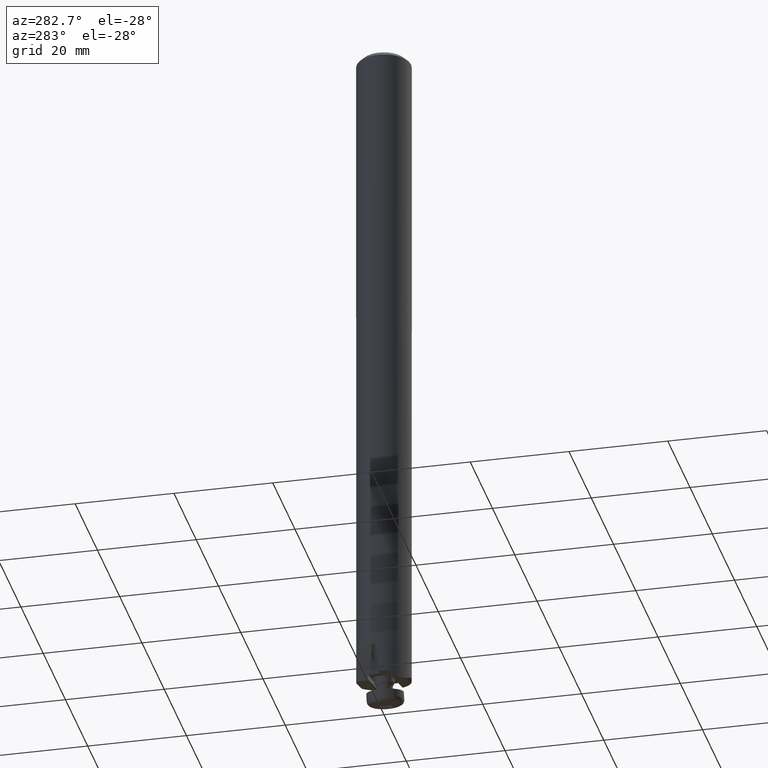
[diagram: clean part render]
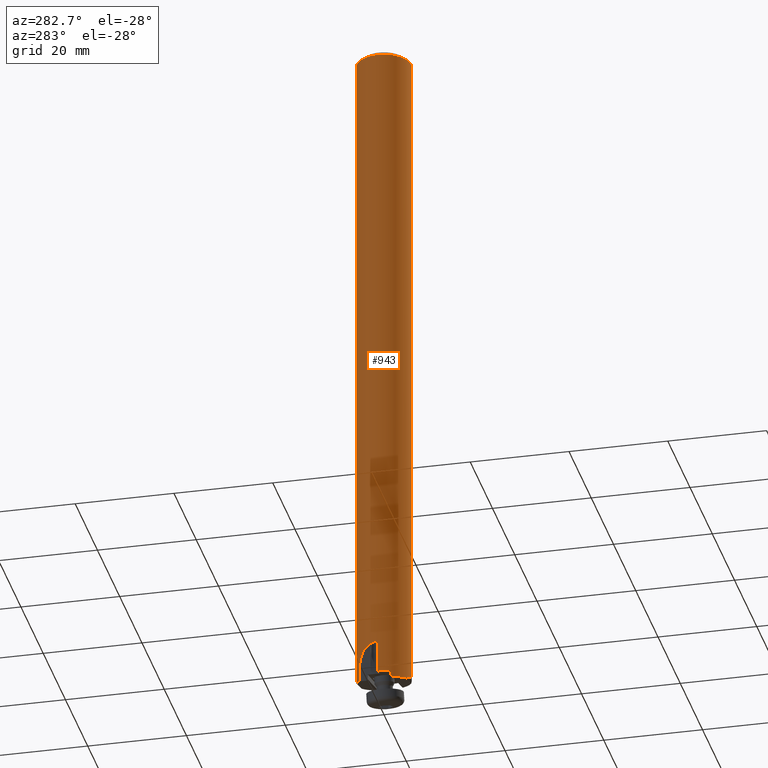
[diagram: same view with one face highlighted and labeled with its STEP entity id]
A machine part, auxiliary view. The second image highlights one B-rep face of the part: STEP entity #943.
In plain terms, the highlighted cylindrical surface (edge-blend (fillet) strip) has radius 5.5 mm, axis along (-0, -0, 1).
Its self-contained STEP definition (entity closure, byte-faithful):
#423=EDGE_CURVE('NONE',#871,#747,#1096,.T.);
#505=VERTEX_POINT('NONE',#1191);
#511=EDGE_CURVE('NONE',#715,#735,#1197,.T.);
#689=EDGE_CURVE('NONE',#981,#841,#1400,.T.);
#705=EDGE_CURVE('NONE',#875,#891,#1417,.T.);
#707=VERTEX_POINT('NONE',#1419);
#715=VERTEX_POINT('NONE',#1428);
#723=EDGE_CURVE('NONE',#735,#893,#1437,.T.);
#727=EDGE_CURVE('NONE',#505,#707,#1441,.T.);
#735=VERTEX_POINT('NONE',#1452);
#739=EDGE_CURVE('NONE',#707,#981,#1456,.T.);
#747=VERTEX_POINT('NONE',#1464);
#757=EDGE_CURVE('NONE',#841,#715,#1475,.T.);
#775=EDGE_CURVE('NONE',#847,#747,#1494,.T.);
#791=VERTEX_POINT('NONE',#1513);
#805=EDGE_CURVE('NONE',#791,#847,#1529,.T.);
#827=EDGE_CURVE('NONE',#875,#505,#1552,.T.);
#841=VERTEX_POINT('NONE',#1569);
#847=VERTEX_POINT('NONE',#1575);
#871=VERTEX_POINT('NONE',#1601);
#875=VERTEX_POINT('NONE',#1605);
#877=EDGE_CURVE('NONE',#791,#893,#1607,.T.);
#891=VERTEX_POINT('NONE',#1622);
#893=VERTEX_POINT('NONE',#1624);
#943=ADVANCED_FACE('NONE',(#1679),#1680,.T.);
#981=VERTEX_POINT('NONE',#1722);
#1003=EDGE_CURVE('NONE',#891,#871,#1747,.T.);
#1096=LINE('',#1868,#1869);
#1191=CARTESIAN_POINT('',(-4.89897948556636,-2.5,1.25439837943508));
#1197=LINE('',#2029,#2030);
#1400=(B_SPLINE_CURVE(3,(#2370,#2371,#2372,#2373),.UNSPECIFIED.,.F.,.F.)B_SPLINE_CURVE_WITH_KNOTS((4,4),(3.66519142918809,4.28268931423327),.UNSPECIFIED.)RATIONAL_B_SPLINE_CURVE((1.0,0.968476313602969,0.968476313602969,1.0))BOUNDED_CURVE()REPRESENTATION_ITEM('')GEOMETRIC_REPRESENTATION_ITEM()CURVE());
#1417=LINE('',#2401,#2402);
#1419=CARTESIAN_POINT('',(-4.89897948556636,-2.5,0.22378475008518));
#1428=CARTESIAN_POINT('',(-6.73533494602307E-016,-5.5,1.70289092852863));
#1437=CIRCLE('',#2429,5.5);
#1441=LINE('',#2435,#2436);
#1452=CARTESIAN_POINT('',(-6.73533494602307E-016,-5.5,139.0));
#1456=(B_SPLINE_CURVE(3,(#2485,#2486,#2487,#2488),.UNSPECIFIED.,.F.,.F.)B_SPLINE_CURVE_WITH_KNOTS((4,4),(2.28001957411552,2.33175651243417),.UNSPECIFIED.)RATIONAL_B_SPLINE_CURVE((1.0,0.999776953206362,0.999776953206362,1.0))BOUNDED_CURVE()REPRESENTATION_ITEM('')GEOMETRIC_REPRESENTATION_ITEM()CURVE());
#1464=CARTESIAN_POINT('',(-3.5,4.24264068711928,0.314936103902552));
#1475=(B_SPLINE_CURVE(3,(#2523,#2524,#2525,#2526),.UNSPECIFIED.,.F.,.F.)B_SPLINE_CURVE_WITH_KNOTS((4,4),(5.61612423098718,6.04582389713861),.UNSPECIFIED.)RATIONAL_B_SPLINE_CURVE((1.0,0.984672280612263,0.984672280612263,1.0))BOUNDED_CURVE()REPRESENTATION_ITEM('')GEOMETRIC_REPRESENTATION_ITEM()CURVE());
#1494=(B_SPLINE_CURVE(3,(#2560,#2561,#2562,#2563),.UNSPECIFIED.,.F.,.F.)B_SPLINE_CURVE_WITH_KNOTS((4,4),(2.00049599294632,2.2605713275804),.UNSPECIFIED.)RATIONAL_B_SPLINE_CURVE((1.0,0.994371340027342,0.994371340027342,1.0))BOUNDED_CURVE()REPRESENTATION_ITEM('')GEOMETRIC_REPRESENTATION_ITEM()CURVE());
#1513=CARTESIAN_POINT('',(0.0,5.5,1.70289092852863));
#1529=(B_SPLINE_CURVE(3,(#2616,#2617,#2618,#2619),.UNSPECIFIED.,.F.,.F.)B_SPLINE_CURVE_WITH_KNOTS((4,4),(0.237361410040979,0.667061076192402),.UNSPECIFIED.)RATIONAL_B_SPLINE_CURVE((1.0,0.984672280612263,0.984672280612263,1.0))BOUNDED_CURVE()REPRESENTATION_ITEM('')GEOMETRIC_REPRESENTATION_ITEM()CURVE());
#1552=(B_SPLINE_CURVE(3,(#2677,#2678,#2679,#2680),.UNSPECIFIED.,.F.,.F.)B_SPLINE_CURVE_WITH_KNOTS((4,4),(3.14159265358979,3.61345449086943),.UNSPECIFIED.)RATIONAL_B_SPLINE_CURVE((1.0,0.981531441395684,0.981531441395684,1.0))BOUNDED_CURVE()REPRESENTATION_ITEM('')GEOMETRIC_REPRESENTATION_ITEM()CURVE());
#1569=CARTESIAN_POINT('',(-2.29128784747792,-5.0,0.616301890903165));
#1575=CARTESIAN_POINT('',(-2.29128784747792,5.0,0.616301890903165));
#1601=CARTESIAN_POINT('',(-3.5,4.24264068711928,2.51628009821619));
#1605=CARTESIAN_POINT('',(-5.5,0.0,1.10454713490356));
#1607=LINE('',#2758,#2759);
#1622=CARTESIAN_POINT('',(-5.5,0.0,7.80778272034537));
#1624=CARTESIAN_POINT('',(0.0,5.5,139.0));
#1679=FACE_OUTER_BOUND('',#2852,.T.);
#1680=CYLINDRICAL_SURFACE('',#2853,5.5);
#1722=CARTESIAN_POINT('',(-4.76313972081442,-2.75,0.0));
#1747=B_SPLINE_CURVE_WITH_KNOTS('',3,(#2966,#2967,#2968,#2969,#2970,#2971,#2972,#2973,#2974,#2975,#2976,#2977,#2978,#2979,#2980,#2981,#2982,#2983,#2984,#2985,#2986,#2987),.UNSPECIFIED.,.F.,.F.,(4,2,2,2,2,2,2,2,2,2,4),(0.0,0.000994575399473276,0.00149186309920991,0.00198915079894655,0.00298372619841983,0.00348101389815647,0.0039783015978931,0.00497287699736638,0.00596745239683966,0.00696202779631294,0.00795660319578622),.UNSPECIFIED.);
#1868=CARTESIAN_POINT('',(-3.5,4.24264068711929,12.8162800982162));
#1869=VECTOR('',#3067,1000.0);
#2029=CARTESIAN_POINT('',(-6.73533494602307E-016,-5.5,12.8162800982162));
#2030=VECTOR('',#3202,1000.0);
#2370=CARTESIAN_POINT('',(-4.76313972081442,-2.75,0.0));
#2371=CARTESIAN_POINT('',(-4.1879171320008,-3.74631474948648,0.143419099259184));
#2372=CARTESIAN_POINT('',(-3.33714709986631,-4.52072708096603,0.355539892250107));
#2373=CARTESIAN_POINT('',(-2.29128784747792,-5.0,0.616301890903165));
#2401=CARTESIAN_POINT('',(-5.5,0.0,12.8162800982162));
#2402=VECTOR('',#3472,1000.0);
#2429=AXIS2_PLACEMENT_3D('',#3498,#3499,#3500);
#2435=CARTESIAN_POINT('',(-4.89897948556636,-2.5,12.8162800982162));
#2436=VECTOR('',#3504,1000.0);
#2485=CARTESIAN_POINT('',(-4.89897948556636,-2.5,0.22378475008518));
#2486=CARTESIAN_POINT('',(-4.85586056110281,-2.58449549055465,0.147453301222193));
#2487=CARTESIAN_POINT('',(-4.81057053772432,-2.66784741526754,0.0728417426582268));
#2488=CARTESIAN_POINT('',(-4.76313972081442,-2.75,0.0));
#2523=CARTESIAN_POINT('',(-2.29128784747792,-5.0,0.616301890903165));
#2524=CARTESIAN_POINT('',(-1.56955629423788,-5.33073894741605,1.13711384462523));
#2525=CARTESIAN_POINT('',(-0.793904708564046,-5.5,1.50494825309456));
#2526=CARTESIAN_POINT('',(-6.73533494602307E-016,-5.5,1.70289092852863));
#2560=CARTESIAN_POINT('',(-2.29128784747792,5.0,0.616301890903165));
#2561=CARTESIAN_POINT('',(-2.72597284822211,4.80080230806278,0.507922747801727));
#2562=CARTESIAN_POINT('',(-3.13115754595245,4.54692018764022,0.406898856334003));
#2563=CARTESIAN_POINT('',(-3.5,4.24264068711928,0.314936103902552));
#2616=CARTESIAN_POINT('',(0.0,5.5,1.70289092852863));
#2617=CARTESIAN_POINT('',(-0.793904708564044,5.5,1.50494825309456));
#2618=CARTESIAN_POINT('',(-1.56955629423788,5.33073894741606,1.13711384462523));
#2619=CARTESIAN_POINT('',(-2.29128784747792,5.0,0.616301890903165));
#2677=CARTESIAN_POINT('',(-5.5,0.0,1.10454713490356));
#2678=CARTESIAN_POINT('',(-5.5,-0.873203604745345,1.10454713490356));
#2679=CARTESIAN_POINT('',(-5.29589021499606,-1.72221699156908,1.15543741995934));
#2680=CARTESIAN_POINT('',(-4.89897948556636,-2.5,1.25439837943508));
#2758=CARTESIAN_POINT('',(0.0,5.5,12.8162800982162));
#2759=VECTOR('',#3679,1000.0);
#2852=EDGE_LOOP('',(#3746,#3747,#3748,#3749,#3750,#3751,#3752,#3753,#3754,#3755,#3756,#3757,#3758));
#2853=AXIS2_PLACEMENT_3D('',#3759,#3760,#3761);
#2966=CARTESIAN_POINT('',(-5.5,0.0,7.80778272034537));
#2967=CARTESIAN_POINT('',(-5.5,0.336610566695048,7.80778272034537));
#2968=CARTESIAN_POINT('',(-5.46935822467223,0.665152462375926,7.77360642965087));
#2969=CARTESIAN_POINT('',(-5.38168820134961,1.14630227272434,7.67072389254325));
#2970=CARTESIAN_POINT('',(-5.3451164275767,1.30571919056325,7.62723256955199));
#2971=CARTESIAN_POINT('',(-5.26095896207198,1.6116708809028,7.52415328764399));
#2972=CARTESIAN_POINT('',(-5.21330996805988,1.75906545773157,7.46450043449216));
#2973=CARTESIAN_POINT('',(-5.05634717990314,2.18517771060236,7.26062015244702));
#2974=CARTESIAN_POINT('',(-4.93124833545708,2.4502558804247,7.08880641418775));
#2975=CARTESIAN_POINT('',(-4.73633708532981,2.7990805669908,6.79026978139129));
#2976=CARTESIAN_POINT('',(-4.66995426429972,2.90799028473004,6.68375324759651));
#2977=CARTESIAN_POINT('',(-4.53643243232826,3.11217947966625,6.45659530553577));
#2978=CARTESIAN_POINT('',(-4.46893822330074,3.20789549518714,6.33523216968327));
#2979=CARTESIAN_POINT('',(-4.27200139942231,3.47102484148633,5.9567647672335));
#2980=CARTESIAN_POINT('',(-4.14757406579409,3.61591361929791,5.68469908655367));
#2981=CARTESIAN_POINT('',(-3.92345340585648,3.85794184838821,5.10336102281314));
#2982=CARTESIAN_POINT('',(-3.82513609469386,3.9534981581014,4.79690947978442));
#2983=CARTESIAN_POINT('',(-3.66595183351368,4.10153763647228,4.16930631283459));
#2984=CARTESIAN_POINT('',(-3.60395995723252,4.15504954761277,3.8441097875098));
#2985=CARTESIAN_POINT('',(-3.52100133940069,4.22557850292609,3.18423250289137));
#2986=CARTESIAN_POINT('',(-3.5,4.24264068711929,2.85159114006789));
#2987=CARTESIAN_POINT('',(-3.5,4.24264068711928,2.51628009821619));
#3067=DIRECTION('',(0.0,0.0,-1.0));
#3202=DIRECTION('',(0.0,-0.0,1.0));
#3472=DIRECTION('',(0.0,-0.0,1.0));
#3498=CARTESIAN_POINT('',(0.0,0.0,139.0));
#3499=DIRECTION('',(0.0,0.0,-1.0));
#3500=DIRECTION('',(0.0,-1.0,0.0));
#3504=DIRECTION('',(0.0,0.0,-1.0));
#3679=DIRECTION('',(0.0,-0.0,1.0));
#3746=ORIENTED_EDGE('',*,*,#757,.T.);
#3747=ORIENTED_EDGE('',*,*,#511,.T.);
#3748=ORIENTED_EDGE('',*,*,#723,.T.);
#3749=ORIENTED_EDGE('',*,*,#877,.F.);
#3750=ORIENTED_EDGE('',*,*,#805,.T.);
#3751=ORIENTED_EDGE('',*,*,#775,.T.);
#3752=ORIENTED_EDGE('',*,*,#423,.F.);
#3753=ORIENTED_EDGE('',*,*,#1003,.F.);
#3754=ORIENTED_EDGE('',*,*,#705,.F.);
#3755=ORIENTED_EDGE('',*,*,#827,.T.);
#3756=ORIENTED_EDGE('',*,*,#727,.T.);
#3757=ORIENTED_EDGE('',*,*,#739,.T.);
#3758=ORIENTED_EDGE('',*,*,#689,.T.);
#3759=CARTESIAN_POINT('',(0.0,0.0,12.8162800982162));
#3760=DIRECTION('',(-0.0,-0.0,1.0));
#3761=DIRECTION('',(0.0,1.0,0.0));